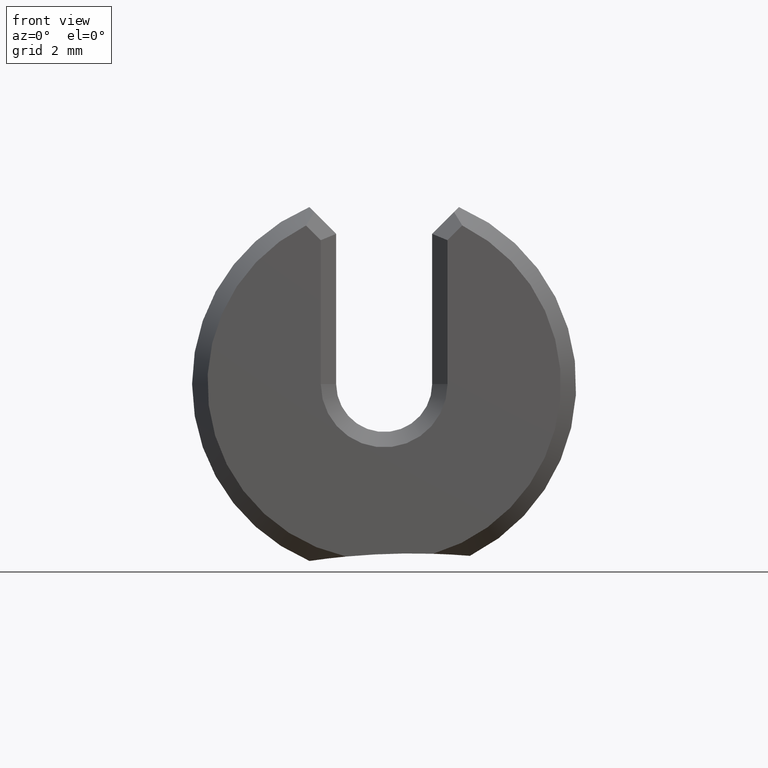
[diagram: clean part render]
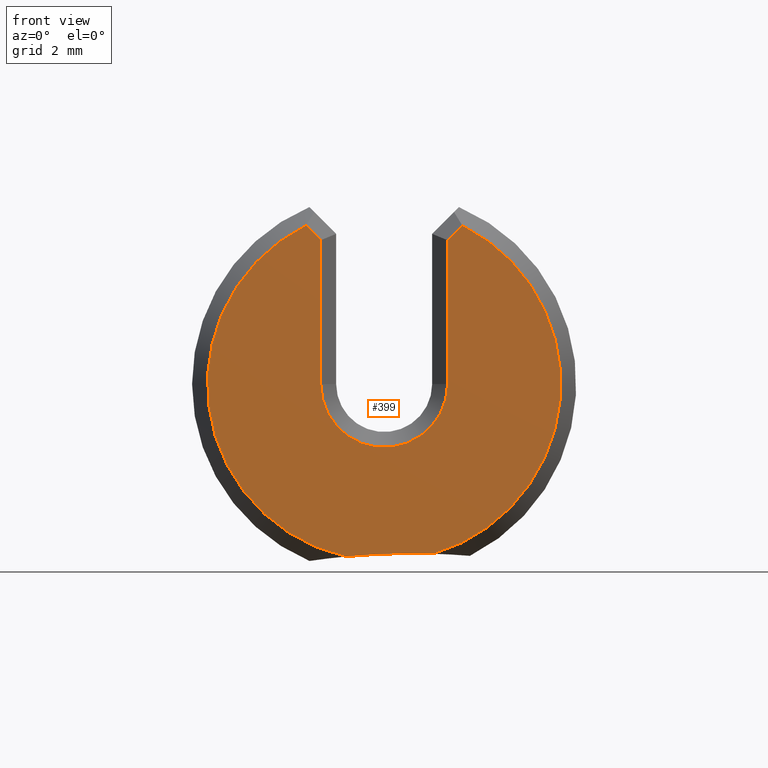
[diagram: same view with one face highlighted and labeled with its STEP entity id]
A machine part, front view. The second image highlights one B-rep face of the part: STEP entity #399.
In plain terms, the highlighted planar face has unit normal (0, 1, 0).
Its self-contained STEP definition (entity closure, byte-faithful):
#18 = CARTESIAN_POINT ( 'NONE',  ( 0.0000000000000000000, 0.0000000000000000000, 0.0000000000000000000 ) ) ;
#20 = CARTESIAN_POINT ( 'NONE',  ( 0.06187500000000011700, 0.0000000000000000000, 0.0000000000000000000 ) ) ;
#21 = DIRECTION ( 'NONE',  ( 0.0000000000000000000, 0.0000000000000000000, -1.000000000000000000 ) ) ;
#22 = DIRECTION ( 'NONE',  ( 0.0000000000000000000, 1.000000000000000000, 0.0000000000000000000 ) ) ;
#23 = DIRECTION ( 'NONE',  ( 0.0000000000000000000, 0.0000000000000000000, 1.000000000000000000 ) ) ;
#24 = DIRECTION ( 'NONE',  ( -0.7071067811865462400, 0.0000000000000000000, 0.7071067811865487900 ) ) ;
#25 = CARTESIAN_POINT ( 'NONE',  ( -0.07210183751502337300, 0.0000000000000000000, 0.1505597284328993300 ) ) ;
#113 = CIRCLE ( 'NONE', #250, 0.1725000000000000100 ) ;
#127 = FACE_OUTER_BOUND ( 'NONE', #711, .T. ) ;
#146 = LINE ( 'NONE', #25, #738 ) ;
#147 = LINE ( 'NONE', #681, #151 ) ;
#148 = VECTOR ( 'NONE', #21, 39.37007874015748100 ) ;
#149 = CIRCLE ( 'NONE', #249, 0.06187500000000011700 ) ;
#150 = VECTOR ( 'NONE', #678, 39.37007874015748100 ) ;
#151 = VECTOR ( 'NONE', #680, 39.37007874015748100 ) ;
#152 = LINE ( 'NONE', #679, #150 ) ;
#153 = LINE ( 'NONE', #20, #148 ) ;
#203 = DIRECTION ( 'NONE',  ( 0.0000000000000000000, 0.0000000000000000000, 1.000000000000000000 ) ) ;
#205 = DIRECTION ( 'NONE',  ( -0.0000000000000000000, -1.000000000000000000, -0.0000000000000000000 ) ) ;
#207 = CARTESIAN_POINT ( 'NONE',  ( 0.0000000000000000000, 0.0000000000000000000, 0.0000000000000000000 ) ) ;
#238 = ORIENTED_EDGE ( 'NONE', *, *, #565, .T. ) ;
#239 = ORIENTED_EDGE ( 'NONE', *, *, #566, .T. ) ;
#240 = ORIENTED_EDGE ( 'NONE', *, *, #567, .T. ) ;
#242 = ORIENTED_EDGE ( 'NONE', *, *, #568, .T. ) ;
#243 = ORIENTED_EDGE ( 'NONE', *, *, #569, .T. ) ;
#244 = ORIENTED_EDGE ( 'NONE', *, *, #570, .T. ) ;
#245 = ORIENTED_EDGE ( 'NONE', *, *, #571, .T. ) ;
#246 = ORIENTED_EDGE ( 'NONE', *, *, #572, .F. ) ;
#248 = AXIS2_PLACEMENT_3D ( 'NONE', #207, #205, #203 ) ;
#249 = AXIS2_PLACEMENT_3D ( 'NONE', #18, #22, #23 ) ;
#250 = AXIS2_PLACEMENT_3D ( 'NONE', #682, #684, #683 ) ;
#262 = AXIS2_PLACEMENT_3D ( 'NONE', #325, #324, #323 ) ;
#267 = CARTESIAN_POINT ( 'NONE',  ( -0.06187500000000011700, 0.0000000000000000000, 0.1403328909178760400 ) ) ;
#274 = CARTESIAN_POINT ( 'NONE',  ( 0.06187500000000011700, 0.0000000000000000000, 0.0000000000000000000 ) ) ;
#278 = CARTESIAN_POINT ( 'NONE',  ( -0.03721179448869235700, 0.0000000000000000000, -0.1684385120776459300 ) ) ;
#281 = CARTESIAN_POINT ( 'NONE',  ( -0.06187500000000011700, 0.0000000000000000000, 0.0000000000000000000 ) ) ;
#283 = CARTESIAN_POINT ( 'NONE',  ( -0.07626657323412496000, -6.535245526497276000E-018, 0.1547244641520008900 ) ) ;
#323 = DIRECTION ( 'NONE',  ( 0.0000000000000000000, 0.0000000000000000000, -1.000000000000000000 ) ) ;
#324 = DIRECTION ( 'NONE',  ( 0.0000000000000000000, -1.000000000000000000, 0.0000000000000000000 ) ) ;
#325 = CARTESIAN_POINT ( 'NONE',  ( 0.02715540016017425500, 0.0000000000000000000, -0.8529186902077616800 ) ) ;
#329 = CARTESIAN_POINT ( 'NONE',  ( 0.06187500000000011700, 0.0000000000000000000, 0.1403328909178764600 ) ) ;
#331 = DIRECTION ( 'NONE',  ( 0.0000000000000000000, 1.000000000000000000, 0.0000000000000000000 ) ) ;
#332 = PLANE ( 'NONE',  #507 ) ;
#335 = CARTESIAN_POINT ( 'NONE',  ( 0.07626657323412471000, -6.535245526497275300E-018, 0.1547244641520010800 ) ) ;
#337 = CARTESIAN_POINT ( 'NONE',  ( 0.0000000000000000000, 0.0000000000000000000, 0.0000000000000000000 ) ) ;
#345 = CARTESIAN_POINT ( 'NONE',  ( 0.04785112842069328500, 0.0000000000000000000, -0.1657302612948712300 ) ) ;
#355 = DIRECTION ( 'NONE',  ( 0.0000000000000000000, -0.0000000000000000000, 1.000000000000000000 ) ) ;
#399 = ADVANCED_FACE ( 'NONE', ( #127 ), #332, .F. ) ;
#425 = VERTEX_POINT ( 'NONE', #345 ) ;
#434 = VERTEX_POINT ( 'NONE', #335 ) ;
#438 = VERTEX_POINT ( 'NONE', #329 ) ;
#439 = VERTEX_POINT ( 'NONE', #274 ) ;
#440 = VERTEX_POINT ( 'NONE', #281 ) ;
#441 = VERTEX_POINT ( 'NONE', #267 ) ;
#442 = VERTEX_POINT ( 'NONE', #283 ) ;
#446 = VERTEX_POINT ( 'NONE', #278 ) ;
#507 = AXIS2_PLACEMENT_3D ( 'NONE', #337, #331, #355 ) ;
#565 = EDGE_CURVE ( 'NONE', #425, #434, #113, .T. ) ;
#566 = EDGE_CURVE ( 'NONE', #434, #438, #152, .T. ) ;
#567 = EDGE_CURVE ( 'NONE', #438, #439, #153, .T. ) ;
#568 = EDGE_CURVE ( 'NONE', #439, #440, #149, .T. ) ;
#569 = EDGE_CURVE ( 'NONE', #440, #441, #147, .T. ) ;
#570 = EDGE_CURVE ( 'NONE', #441, #442, #146, .T. ) ;
#571 = EDGE_CURVE ( 'NONE', #442, #446, #736, .T. ) ;
#572 = EDGE_CURVE ( 'NONE', #425, #446, #737, .T. ) ;
#678 = DIRECTION ( 'NONE',  ( -0.7071067811865460200, 0.0000000000000000000, -0.7071067811865490200 ) ) ;
#679 = CARTESIAN_POINT ( 'NONE',  ( 0.05748160171779809900, 0.0000000000000000000, 0.1359394926356744200 ) ) ;
#680 = DIRECTION ( 'NONE',  ( 0.0000000000000000000, 0.0000000000000000000, 1.000000000000000000 ) ) ;
#681 = CARTESIAN_POINT ( 'NONE',  ( -0.06187500000000011700, 0.0000000000000000000, 0.0000000000000000000 ) ) ;
#682 = CARTESIAN_POINT ( 'NONE',  ( 0.0000000000000000000, 0.0000000000000000000, 0.0000000000000000000 ) ) ;
#683 = DIRECTION ( 'NONE',  ( -8.881784197001252300E-016, 0.0000000000000000000, 1.000000000000000000 ) ) ;
#684 = DIRECTION ( 'NONE',  ( -0.0000000000000000000, -1.000000000000000000, -0.0000000000000000000 ) ) ;
#711 = EDGE_LOOP ( 'NONE', ( #238, #239, #240, #242, #243, #244, #245, #246 ) ) ;
#736 = CIRCLE ( 'NONE', #248, 0.1724999999999999000 ) ;
#737 = CIRCLE ( 'NONE', #262, 0.6875000000000000000 ) ;
#738 = VECTOR ( 'NONE', #24, 39.37007874015748100 ) ;